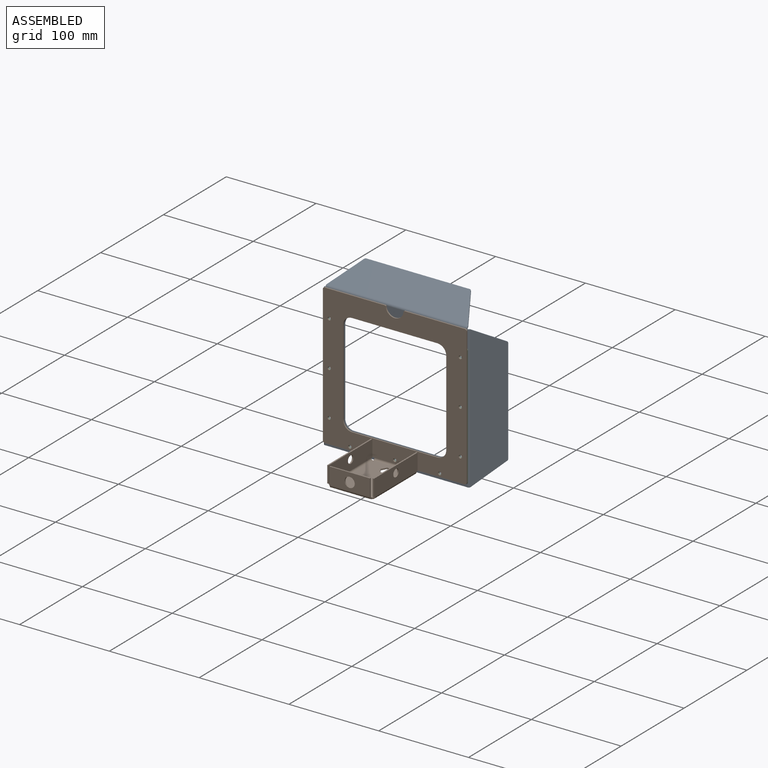
[diagram: assembled view]
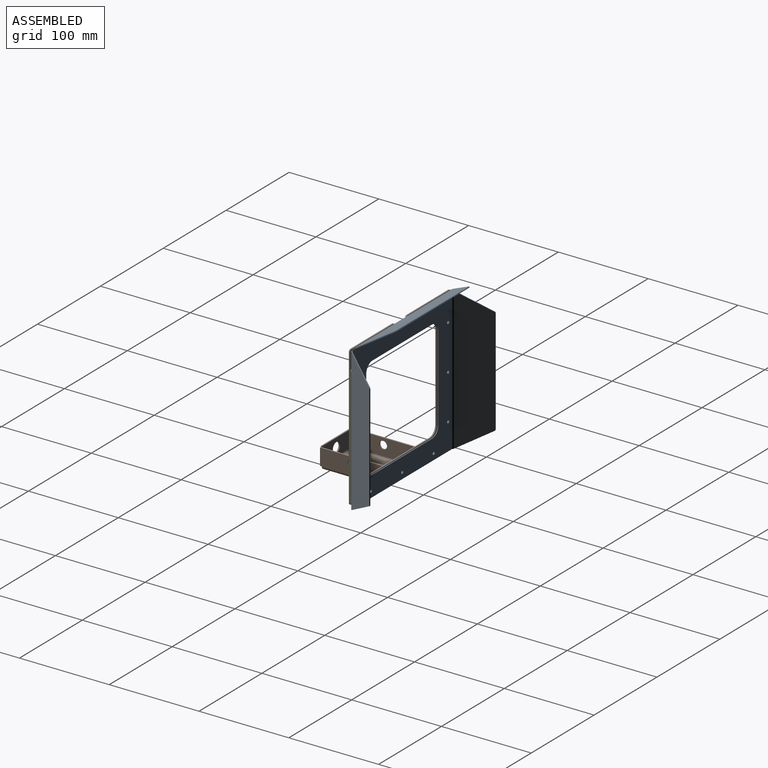
[diagram: assembled view, second angle]
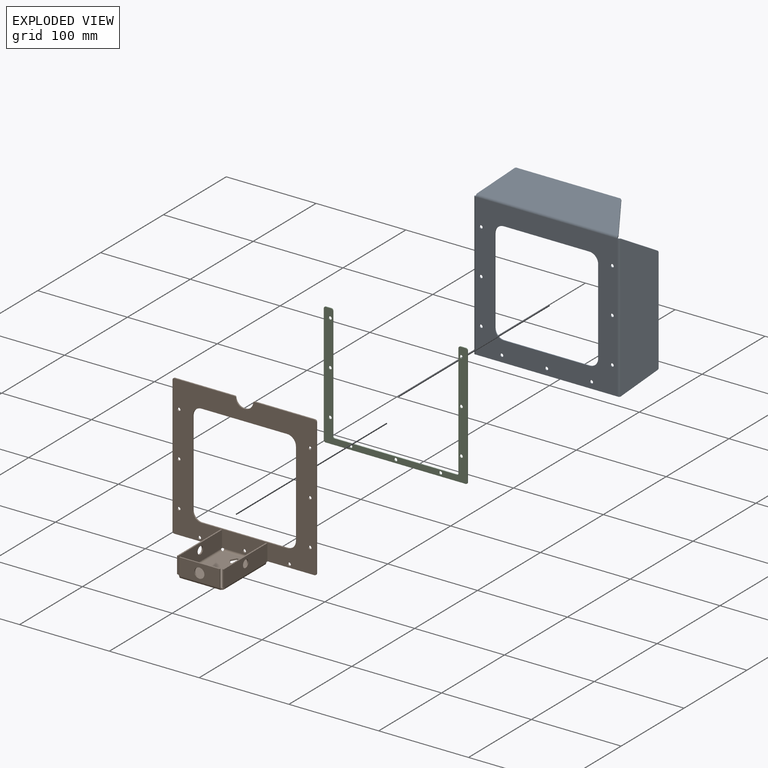
[diagram: exploded view]
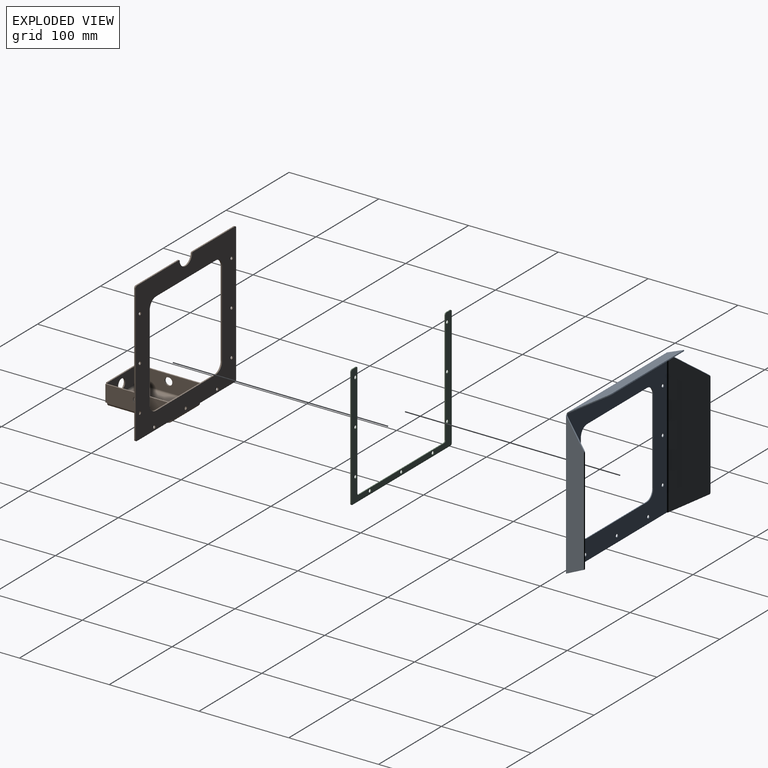
[diagram: exploded view, second angle]
ASSEMBLY  parts=3 mates=2
PART A: 53 faces, bbox 201.2x35.1x180.7 mm
  f0: plane 157.69x1mm, normal (0,0,-1), area 157.7mm2, adj f18,f19,f28,f38
  f1: plane 95x1mm, normal (1,0,0), area 95mm2, adj f2,f17,f18,f19
  f2: cylinder r=10mm len=10mm, axis (0,-1,0), area 15.7mm2, adj f1,f3,f18,f19
  f3: plane 95x1mm, normal (0,0,1), area 95mm2, adj f2,f4,f18,f19
  f4: cylinder r=10mm len=10mm, axis (0,-1,0), area 15.7mm2, adj f3,f5,f18,f19
  f5: plane 95x1mm, normal (-1,0,0), area 95mm2, adj f4,f6,f18,f19
  f6: cylinder r=10mm len=10mm, axis (0,-1,0), area 15.7mm2, adj f5,f7,f18,f19
  f7: plane 95x1mm, normal (0,0,-1), area 95mm2, adj f6,f17,f18,f19
  f8: cylinder r=1.75mm len=3.5mm, axis (0,-1,0), area 11mm2, adj f18,f19
  f9: cylinder r=1.75mm len=3.5mm, axis (0,-1,0), area 11mm2, adj f18,f19
  f10: cylinder r=1.75mm len=3.5mm, axis (0,-1,0), area 11mm2, adj f18,f19
  f11: cylinder r=1.75mm len=3.5mm, axis (0,-1,0), area 11mm2, adj f18,f19
  f12: cylinder r=1.75mm len=3.5mm, axis (0,-1,0), area 11mm2, adj f18,f19
  f13: cylinder r=1.75mm len=3.5mm, axis (0,-1,0), area 11mm2, adj f18,f19
  f14: cylinder r=1.75mm len=3.5mm, axis (0,-1,0), area 11mm2, adj f18,f19
  f15: cylinder r=1.75mm len=3.5mm, axis (0,-1,0), area 11mm2, adj f18,f19
  f16: cylinder r=1.75mm len=3.5mm, axis (0,-1,0), area 11mm2, adj f18,f19
  f17: cylinder r=10mm len=10mm, axis (0,-1,0), area 15.7mm2, adj f1,f7,f18,f19
  f18: plane 158.85x157.69mm, normal (0,1,0), area 11822.7mm2, adj f0,f1,f2,f3,f4,f5,f6,f7
  f19: plane 158.85x157.69mm, normal (0,-1,0), area 11822.7mm2, adj f0,f1,f2,f3,f4,f5,f6,f7
  f20: plane 32.71x19.46mm, normal (-0.23,0.4,-0.89), area 42mm2, adj f23,f24,f25,f28
  f21: plane 116.42x0.87mm, normal (-0.5,0.87,0), area 116.4mm2, adj f23,f24,f25,f26
  f22: plane 32.71x19.46mm, normal (-0.23,0.4,0.89), area 42mm2, adj f23,f24,f26,f27
  f23: plane 158.85x33.14mm, normal (0.87,0.5,0), area 5312.8mm2, adj f20,f21,f22,f25,f26,f30
  f24: plane 158.85x33.14mm, normal (-0.87,-0.5,0), area 5312.8mm2, adj f20,f21,f22,f25,f26,f29
  f25: cylinder r=2mm len=1.77mm, axis (-0.87,-0.5,0), area 2.2mm2, adj f20,f21,f23,f24
  f26: cylinder r=2mm len=1.77mm, axis (-0.87,-0.5,0), area 2.2mm2, adj f21,f22,f23,f24
  f27: plane 2.6x2mm, normal (0,0,1), area 2.6mm2, adj f22,f29,f30,f50
  f28: bspline ~2.6x2mm, area 2.6mm2, adj f0,f20,f29,f30
  f29: cylinder r=3mm len=158.85mm, axis (0,0,1), area 499mm2, adj f19,f24,f27,f28
  f30: cylinder r=2mm len=158.85mm, axis (0,0,1), area 332.7mm2, adj f18,f23,f27,f28
  f31: plane 116.42x0.87mm, normal (0.5,0.87,0), area 116.4mm2, adj f34,f35,f36,f37
  f32: plane 32.71x19.46mm, normal (0.23,0.4,-0.89), area 42mm2, adj f34,f35,f36,f38
  f33: plane 32.71x19.46mm, normal (0.23,0.4,0.89), area 42mm2, adj f34,f35,f37,f39
  f34: plane 158.85x33.14mm, normal (-0.87,0.5,0), area 5312.8mm2, adj f31,f32,f33,f36,f37,f41
  f35: plane 158.85x33.14mm, normal (0.87,-0.5,0), area 5312.8mm2, adj f31,f32,f33,f36,f37,f40
  f36: cylinder r=2mm len=1.77mm, axis (0.87,-0.5,0), area 2.2mm2, adj f31,f32,f34,f35
  f37: cylinder r=2mm len=1.77mm, axis (0.87,-0.5,0), area 2.2mm2, adj f31,f33,f34,f35
  f38: bspline ~2.6x2mm, area 2.6mm2, adj f0,f32,f40,f41
  f39: plane 2.6x2mm, normal (0,0,1), area 2.6mm2, adj f33,f40,f41,f49
  f40: cylinder r=3mm len=158.85mm, axis (0,0,-1), area 499mm2, adj f19,f35,f38,f39
  f41: cylinder r=2mm len=158.85mm, axis (0,0,-1), area 332.7mm2, adj f18,f34,f38,f39
  f42: plane 32.71x19.46mm, normal (-0.89,0.4,0.23), area 42mm2, adj f45,f46,f47,f50
  f43: plane 115.27x0.87mm, normal (0,0.87,0.5), area 115.3mm2, adj f45,f46,f47,f48
  f44: plane 32.71x19.46mm, normal (0.89,0.4,0.23), area 42mm2, adj f45,f46,f48,f49
  f45: plane 157.69x33.14mm, normal (0,0.5,-0.87), area 5268.6mm2, adj f42,f43,f44,f47,f48,f52
  f46: plane 157.69x33.14mm, normal (0,-0.5,0.87), area 5268.6mm2, adj f42,f43,f44,f47,f48,f51
  f47: cylinder r=2mm len=1.77mm, axis (0,-0.5,0.87), area 2.2mm2, adj f42,f43,f45,f46
  f48: cylinder r=2mm len=1.77mm, axis (0,-0.5,0.87), area 2.2mm2, adj f43,f44,f45,f46
  f49: plane 2.6x2mm, normal (1,0,0), area 2.6mm2, adj f39,f44,f51,f52
  f50: plane 2.6x2mm, normal (-1,0,0), area 2.6mm2, adj f27,f42,f51,f52
  f51: cylinder r=3mm len=157.69mm, axis (1,0,0), area 495.4mm2, adj f19,f46,f49,f50
  f52: cylinder r=2mm len=157.69mm, axis (1,0,0), area 330.3mm2, adj f18,f45,f49,f50
PART B: 80 faces, bbox 160x73x160 mm
  f0: plane 6.47x1.5mm, normal (0,1,0), area 9.7mm2, adj f1,f5,f6,f7
  f1: plane 5.6x3.23mm, normal (-0.87,0.5,0), area 9.7mm2, adj f0,f2,f6,f7
  f2: plane 5.6x3.23mm, normal (-0.87,-0.5,0), area 9.7mm2, adj f1,f3,f6,f7
  f3: plane 6.47x1.5mm, normal (0,-1,0), area 9.7mm2, adj f2,f4,f6,f7
  f4: plane 5.6x3.23mm, normal (0.87,-0.5,0), area 9.7mm2, adj f3,f5,f6,f7
  f5: plane 5.6x3.23mm, normal (0.87,0.5,0), area 9.7mm2, adj f0,f4,f6,f7
  f6: plane 66x45mm, normal (0,0,-1), area 2861.4mm2, adj f0,f1,f2,f3,f4,f5,f44,f56
  f7: plane 66x45mm, normal (0,0,1), area 2861.4mm2, adj f0,f1,f2,f3,f4,f5,f45,f57
  f8: plane 2x1.5mm, normal (0,0,-1), area 3mm2, adj f18,f34,f35,f42
  f9: plane 95x1.5mm, normal (1,0,0), area 142.5mm2, adj f10,f33,f34,f35
  f10: cylinder r=10mm len=10mm, axis (0,1,0), area 23.6mm2, adj f9,f11,f34,f35
  f11: plane 95x1.5mm, normal (0,0,1), area 142.5mm2, adj f10,f12,f34,f35
  f12: cylinder r=10mm len=10mm, axis (0,1,0), area 23.6mm2, adj f11,f13,f34,f35
  f13: plane 95x1.5mm, normal (-1,0,0), area 142.5mm2, adj f12,f14,f34,f35
  f14: cylinder r=10mm len=10mm, axis (0,1,0), area 23.6mm2, adj f13,f15,f34,f35
  f15: plane 95x1.5mm, normal (0,0,-1), area 142.5mm2, adj f14,f33,f34,f35
  f16: plane 67.05x1.5mm, normal (0,0,1), area 100.6mm2, adj f34,f35,f38,f41
  f17: plane 152.5x1.5mm, normal (1,0,0), area 228.7mm2, adj f34,f35,f36,f38
  f18: plane 53.5x1.5mm, normal (0,0,-1), area 80.2mm2, adj f8,f34,f35,f36
  f19: plane 2x1.5mm, normal (0,0,-1), area 3mm2, adj f20,f34,f35,f43
  f20: plane 53.5x1.5mm, normal (0,0,-1), area 80.2mm2, adj f19,f34,f35,f37
  f21: plane 152.5x1.5mm, normal (-1,0,0), area 228.7mm2, adj f34,f35,f37,f39
  f22: plane 67.05x1.5mm, normal (0,0,1), area 100.6mm2, adj f34,f35,f39,f40
  f23: cylinder r=1.75mm len=3.5mm, axis (0,1,0), area 16.5mm2, adj f34,f35
  f24: cylinder r=1.75mm len=3.5mm, axis (0,1,0), area 16.5mm2, adj f34,f35
  f25: cylinder r=1.75mm len=3.5mm, axis (0,1,0), area 16.5mm2, adj f34,f35
  f26: cylinder r=1.75mm len=3.5mm, axis (0,1,0), area 16.5mm2, adj f34,f35
  f27: cylinder r=1.75mm len=3.5mm, axis (0,1,0), area 16.5mm2, adj f34,f35
  f28: cylinder r=1.75mm len=3.5mm, axis (0,1,0), area 16.5mm2, adj f34,f35
  f29: cylinder r=1.75mm len=3.5mm, axis (0,1,0), area 16.5mm2, adj f34,f35
  f30: cylinder r=1.75mm len=3.5mm, axis (0,1,0), area 16.5mm2, adj f34,f35
  f31: cylinder r=1.75mm len=3.5mm, axis (0,1,0), area 16.5mm2, adj f34,f35
  f32: cylinder r=10mm len=19.92mm, axis (0,1,0), area 44.4mm2, adj f34,f35,f40,f41
  f33: cylinder r=10mm len=10mm, axis (0,1,0), area 23.6mm2, adj f9,f15,f34,f35
  f34: plane 160x156.5mm, normal (0,1,0), area 11653.4mm2, adj f8,f9,f10,f11,f12,f13,f14,f15
  f35: plane 160x156.5mm, normal (0,-1,0), area 11653.4mm2, adj f8,f9,f10,f11,f12,f13,f14,f15
  f36: cylinder r=2mm len=2mm, axis (0,1,0), area 4.7mm2, adj f17,f18,f34,f35
  f37: cylinder r=2mm len=2mm, axis (0,1,0), area 4.7mm2, adj f20,f21,f34,f35
  f38: cylinder r=2mm len=2mm, axis (0,1,0), area 4.7mm2, adj f16,f17,f34,f35
  f39: cylinder r=2mm len=2mm, axis (0,1,0), area 4.7mm2, adj f21,f22,f34,f35
  f40: cylinder r=1mm len=1.5mm, axis (0,1,0), area 2.2mm2, adj f22,f32,f34,f35
  f41: cylinder r=1mm len=1.5mm, axis (0,1,0), area 2.2mm2, adj f16,f32,f34,f35
  f42: plane 3.5x3.5mm, normal (1,0,0), area 6.5mm2, adj f8,f44,f45,f67
  f43: plane 3.5x3.5mm, normal (-1,0,0), area 6.5mm2, adj f19,f44,f45,f54
  f44: cylinder r=3.5mm len=45mm, axis (1,0,0), area 247.4mm2, adj f6,f34,f42,f43
  f45: cylinder r=2mm len=45mm, axis (1,0,0), area 141.4mm2, adj f7,f35,f42,f43
  f46: plane 1.5x1.5mm, normal (0,0,-1), area 2.2mm2, adj f51,f52,f53,f54
  f47: plane 2x1.5mm, normal (0,0,-1), area 3mm2, adj f48,f52,f53,f55
  f48: plane 18.5x1.5mm, normal (0,-1,0), area 27.7mm2, adj f47,f49,f52,f53
  f49: plane 69.5x1.5mm, normal (0,0,1), area 104.2mm2, adj f48,f51,f52,f53
  f50: cylinder r=4.25mm len=8.5mm, axis (-1,0,0), area 40.1mm2, adj f52,f53
  f51: plane 18.5x1.5mm, normal (0,1,0), area 27.7mm2, adj f46,f49,f52,f53
  f52: plane 69.5x18.5mm, normal (-1,0,0), area 1229mm2, adj f46,f47,f48,f49,f50,f51,f56
  f53: plane 69.5x18.5mm, normal (1,0,0), area 1229mm2, adj f46,f47,f48,f49,f50,f51,f57
  f54: plane 3.5x3.5mm, normal (0,1,0), area 6.5mm2, adj f43,f46,f56,f57
  f55: plane 3.5x3.5mm, normal (0,-1,0), area 6.5mm2, adj f47,f56,f57,f76
  f56: cylinder r=3.5mm len=66mm, axis (0,1,0), area 362.9mm2, adj f6,f52,f54,f55
  f57: cylinder r=2mm len=66mm, axis (0,1,0), area 207.3mm2, adj f7,f53,f54,f55
  f58: plane 2x1.5mm, normal (0,0,-1), area 3mm2, adj f59,f64,f65,f66
  f59: plane 18.5x1.5mm, normal (0,-1,0), area 27.7mm2, adj f58,f63,f64,f65
  f60: plane 1.5x1.5mm, normal (0,0,-1), area 2.2mm2, adj f61,f64,f65,f67
  f61: plane 18.5x1.5mm, normal (0,1,0), area 27.7mm2, adj f60,f63,f64,f65
  f62: cylinder r=4.25mm len=8.5mm, axis (1,0,0), area 40.1mm2, adj f64,f65
  f63: plane 69.5x1.5mm, normal (0,0,1), area 104.2mm2, adj f59,f61,f64,f65
  f64: plane 69.5x18.5mm, normal (1,0,0), area 1229mm2, adj f58,f59,f60,f61,f62,f63,f68
  f65: plane 69.5x18.5mm, normal (-1,0,0), area 1229mm2, adj f58,f59,f60,f61,f62,f63,f69
  f66: plane 3.5x3.5mm, normal (0,-1,0), area 6.5mm2, adj f58,f68,f69,f77
  f67: plane 3.5x3.5mm, normal (0,1,0), area 6.5mm2, adj f42,f60,f68,f69
  f68: cylinder r=3.5mm len=66mm, axis (0,-1,0), area 362.9mm2, adj f6,f64,f66,f67
  f69: cylinder r=2mm len=66mm, axis (0,-1,0), area 207.3mm2, adj f7,f65,f66,f67
  f70: plane 45x1.5mm, normal (0,0,1), area 67.5mm2, adj f71,f73,f74,f75
  f71: plane 18.5x1.5mm, normal (-1,0,0), area 27.7mm2, adj f70,f74,f75,f76
  f72: cylinder r=5.6mm len=11.2mm, axis (0,-1,0), area 52.8mm2, adj f74,f75
  f73: plane 18.5x1.5mm, normal (1,0,0), area 27.7mm2, adj f70,f74,f75,f77
  f74: plane 45x18.5mm, normal (0,-1,0), area 734mm2, adj f70,f71,f72,f73,f78
  f75: plane 45x18.5mm, normal (0,1,0), area 734mm2, adj f70,f71,f72,f73,f79
  f76: plane 3.5x3.5mm, normal (-1,0,0), area 6.5mm2, adj f55,f71,f78,f79
  f77: plane 3.5x3.5mm, normal (1,0,0), area 6.5mm2, adj f66,f73,f78,f79
  f78: cylinder r=3.5mm len=45mm, axis (-1,0,0), area 247.4mm2, adj f6,f74,f76,f77
  f79: cylinder r=2mm len=45mm, axis (-1,0,0), area 141.4mm2, adj f7,f75,f76,f77
PART C: 27 faces, bbox 160x1x136.5 mm
  f0: plane 136x1mm, normal (0,0,1), area 136mm2, adj f17,f18,f21,f22
  f1: plane 126x1mm, normal (-1,0,0), area 126mm2, adj f17,f18,f20,f21
  f2: plane 6x1mm, normal (0,0,1), area 6mm2, adj f17,f18,f19,f20
  f3: plane 132.5x1mm, normal (1,0,0), area 132.5mm2, adj f17,f18,f19,f25
  f4: plane 156x1mm, normal (0,0,-1), area 156mm2, adj f17,f18,f25,f26
  f5: plane 132.5x1mm, normal (-1,0,0), area 132.5mm2, adj f17,f18,f23,f26
  f6: plane 6x1mm, normal (0,0,1), area 6mm2, adj f17,f18,f23,f24
  f7: cylinder r=1.75mm len=3.5mm, axis (0,-1,0), area 11mm2, adj f17,f18
  f8: cylinder r=1.75mm len=3.5mm, axis (0,-1,0), area 11mm2, adj f17,f18
  f9: cylinder r=1.75mm len=3.5mm, axis (0,-1,0), area 11mm2, adj f17,f18
  f10: cylinder r=1.75mm len=3.5mm, axis (0,-1,0), area 11mm2, adj f17,f18
  f11: cylinder r=1.75mm len=3.5mm, axis (0,-1,0), area 11mm2, adj f17,f18
  f12: cylinder r=1.75mm len=3.5mm, axis (0,-1,0), area 11mm2, adj f17,f18
  f13: cylinder r=1.75mm len=3.5mm, axis (0,-1,0), area 11mm2, adj f17,f18
  f14: cylinder r=1.75mm len=3.5mm, axis (0,-1,0), area 11mm2, adj f17,f18
  f15: cylinder r=1.75mm len=3.5mm, axis (0,-1,0), area 11mm2, adj f17,f18
  f16: plane 126x1mm, normal (1,0,0), area 126mm2, adj f17,f18,f22,f24
  f17: plane 160x136.5mm, normal (0,1,0), area 3550mm2, adj f0,f1,f2,f3,f4,f5,f6,f7
  f18: plane 160x136.5mm, normal (0,-1,0), area 3550mm2, adj f0,f1,f2,f3,f4,f5,f6,f7
  f19: cylinder r=2mm len=2mm, axis (0,1,0), area 3.1mm2, adj f2,f3,f17,f18
  f20: cylinder r=2mm len=2mm, axis (0,1,0), area 3.1mm2, adj f1,f2,f17,f18
  f21: cylinder r=2mm len=2mm, axis (0,-1,0), area 3.1mm2, adj f0,f1,f17,f18
  f22: cylinder r=2mm len=2mm, axis (0,-1,0), area 3.1mm2, adj f0,f16,f17,f18
  f23: cylinder r=2mm len=2mm, axis (0,1,0), area 3.1mm2, adj f5,f6,f17,f18
  f24: cylinder r=2mm len=2mm, axis (0,1,0), area 3.1mm2, adj f6,f16,f17,f18
  f25: cylinder r=2mm len=2mm, axis (0,1,0), area 3.1mm2, adj f3,f4,f17,f18
  f26: cylinder r=2mm len=2mm, axis (0,1,0), area 3.1mm2, adj f4,f5,f17,f18
PLACE A t=(-8.98,70.11,-27.02)mm
PLACE B t=(-8.98,66.61,-27.02)mm
PLACE C t=(-8.98,69.11,-27.02)mm
MATE fastened C.f11 <-> A.f12  axis (0,1,0) through (-8.98,69.11,-20.02)mm
MATE fastened B.f24 <-> C.f11  axis (0,1,0) through (-8.98,68.11,-20.02)mm
